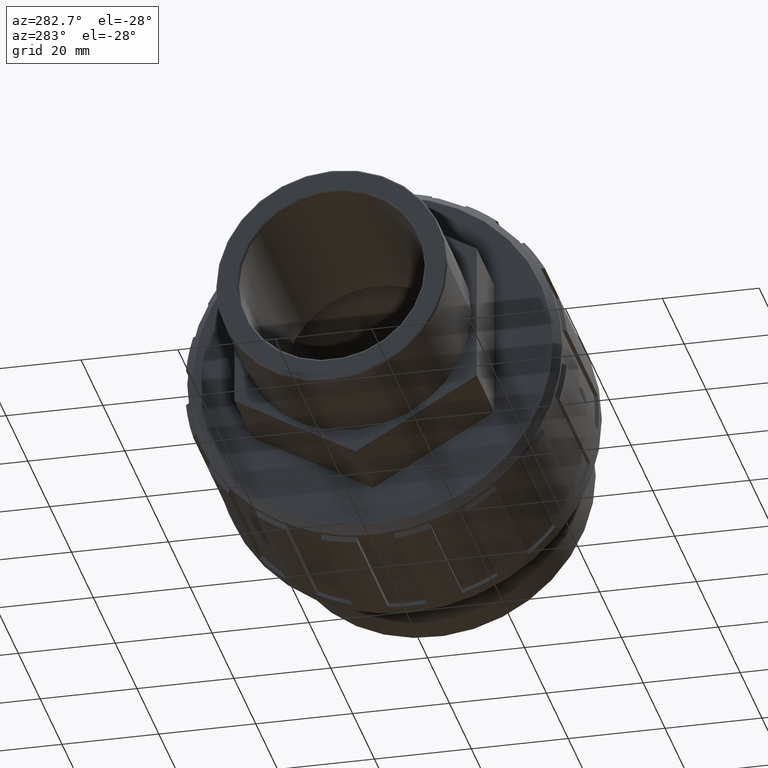
[diagram: clean part render]
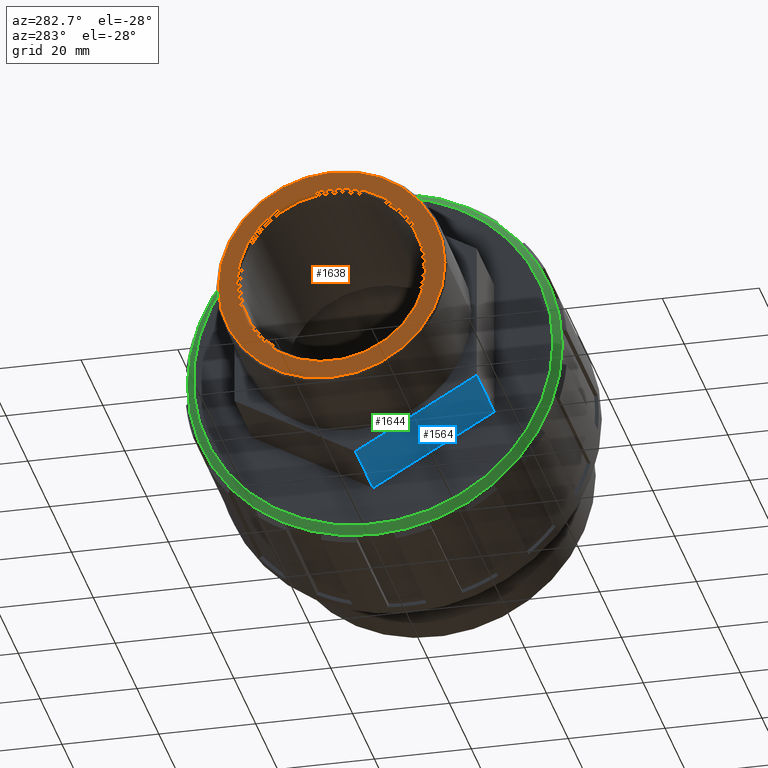
[diagram: same view with three faces highlighted in distinct colors, each labeled with its STEP entity id]
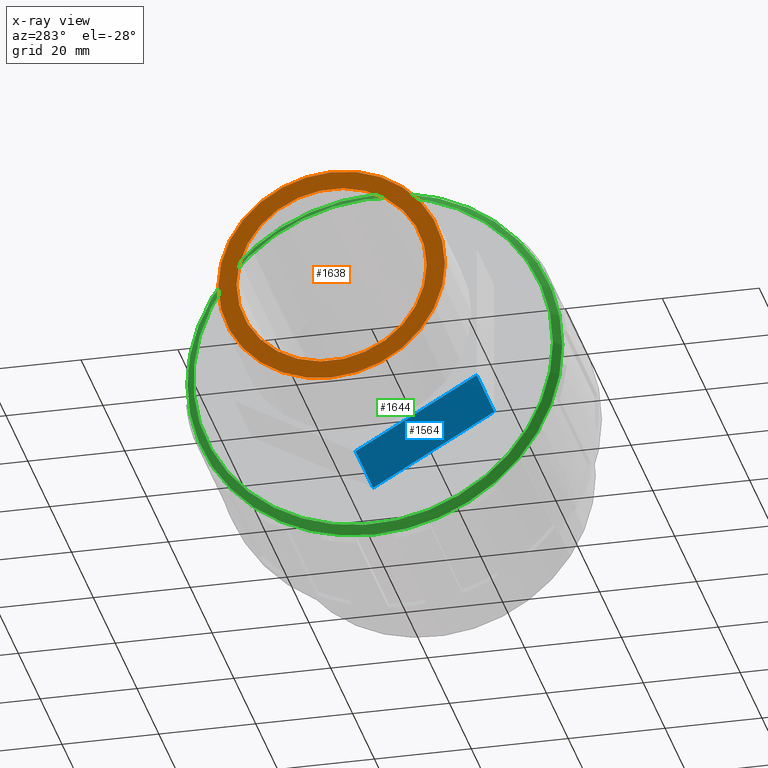
[diagram: x-ray of the same camera — body ghosted, the three highlighted faces saturated]
A machine part, auxiliary view with three faces highlighted in distinct colors.
The next image is the same camera in x-ray (body ghosted, the three faces saturated) — at least one of them is partly hidden behind the body in this view.
Their STEP definitions:

[orange] entity #1638 — the highlighted planar face has unit normal (-1, -0, 0).
#46=FACE_BOUND('',#330,.T.);
#138=CIRCLE('',#1803,19.6212);
#140=CIRCLE('',#1806,23.4015);
#228=FACE_OUTER_BOUND('',#329,.T.);
#329=EDGE_LOOP('',(#1392));
#330=EDGE_LOOP('',(#1393));
#796=VERTEX_POINT('',#2771);
#798=VERTEX_POINT('',#2776);
#1024=EDGE_CURVE('',#796,#796,#138,.T.);
#1026=EDGE_CURVE('',#798,#798,#140,.T.);
#1392=ORIENTED_EDGE('',*,*,#1026,.F.);
#1393=ORIENTED_EDGE('',*,*,#1024,.F.);
#1553=PLANE('',#1805);
#1638=ADVANCED_FACE('',(#228,#46),#1553,.T.);
#1803=AXIS2_PLACEMENT_3D('',#2772,#2273,#2274);
#1805=AXIS2_PLACEMENT_3D('',#2775,#2277,#2278);
#1806=AXIS2_PLACEMENT_3D('',#2777,#2279,#2280);
#2273=DIRECTION('center_axis',(-1.,-4.89858719658941E-16,0.));
#2274=DIRECTION('ref_axis',(-4.89858719658941E-16,1.,6.12323399573676E-17));
#2277=DIRECTION('center_axis',(-1.,-4.89858719658941E-16,0.));
#2278=DIRECTION('ref_axis',(0.,0.,1.));
#2279=DIRECTION('center_axis',(1.,4.89858719658941E-16,0.));
#2280=DIRECTION('ref_axis',(-4.89858719658941E-16,1.,6.12323399573677E-17));
#2771=CARTESIAN_POINT('',(-48.,-19.6212,1.2014519887715E-15));
#2772=CARTESIAN_POINT('Origin',(-48.,-1.46957615897682E-14,0.));
#2775=CARTESIAN_POINT('Origin',(-48.,-19.1212,0.));
#2776=CARTESIAN_POINT('',(-48.,-23.4015,-4.29878581053702E-15));
#2777=CARTESIAN_POINT('Origin',(-48.,-1.46957615897682E-14,0.));

[blue] entity #1564 — the highlighted planar face has unit normal (0, -0.5, -0.866).
#154=FACE_OUTER_BOUND('',#246,.T.);
#246=EDGE_LOOP('',(#1051,#1052,#1053,#1054));
#365=LINE('',#2352,#511);
#368=LINE('',#2358,#514);
#369=LINE('',#2360,#515);
#370=LINE('',#2361,#516);
#511=VECTOR('',#1847,16.);
#514=VECTOR('',#1852,28.8675134594813);
#515=VECTOR('',#1853,16.);
#516=VECTOR('',#1854,28.8675134594813);
#655=VERTEX_POINT('',#2348);
#657=VERTEX_POINT('',#2351);
#659=VERTEX_POINT('',#2357);
#660=VERTEX_POINT('',#2359);
#817=EDGE_CURVE('',#657,#655,#365,.T.);
#820=EDGE_CURVE('',#659,#655,#368,.T.);
#821=EDGE_CURVE('',#660,#659,#369,.T.);
#822=EDGE_CURVE('',#660,#657,#370,.T.);
#1051=ORIENTED_EDGE('',*,*,#820,.F.);
#1052=ORIENTED_EDGE('',*,*,#821,.F.);
#1053=ORIENTED_EDGE('',*,*,#822,.T.);
#1054=ORIENTED_EDGE('',*,*,#817,.T.);
#1502=PLANE('',#1658);
#1564=ADVANCED_FACE('',(#154),#1502,.T.);
#1658=AXIS2_PLACEMENT_3D('',#2356,#1850,#1851);
#1847=DIRECTION('',(1.,5.55111512312572E-16,0.));
#1850=DIRECTION('center_axis',(2.77555756156287E-16,-0.500000000000002,
-0.866025403784438));
#1851=DIRECTION('ref_axis',(-3.5527136788005E-16,0.866025403784438,-0.500000000000002));
#1852=DIRECTION('',(-4.24230095489962E-16,0.866025403784438,-0.500000000000002));
#1853=DIRECTION('',(1.,5.55111512312572E-16,0.));
#1854=DIRECTION('',(-4.24230095489962E-16,0.866025403784438,-0.500000000000002));
#2348=CARTESIAN_POINT('',(-10.,-4.77726792299652E-14,-28.8675134594813));
#2351=CARTESIAN_POINT('',(-26.,-5.66544634269663E-14,-28.8675134594813));
#2352=CARTESIAN_POINT('',(-26.,-5.66544634269663E-14,-28.8675134594813));
#2356=CARTESIAN_POINT('Origin',(-26.,-25.,-14.4337567297406));
#2357=CARTESIAN_POINT('',(-10.,-25.,-14.4337567297406));
#2358=CARTESIAN_POINT('',(-10.,-28.125,-12.629537138523));
#2359=CARTESIAN_POINT('',(-26.,-25.,-14.4337567297406));
#2360=CARTESIAN_POINT('',(-26.,-25.,-14.4337567297406));
#2361=CARTESIAN_POINT('',(-26.,-25.,-14.4337567297406));

[green] entity #1644 — the highlighted conical surface has half-angle 45 deg.
#36=CONICAL_SURFACE('',#1816,37.92,45.);
#50=FACE_BOUND('',#340,.T.);
#145=CIRCLE('',#1817,38.71);
#146=CIRCLE('',#1818,37.13);
#234=FACE_OUTER_BOUND('',#339,.T.);
#339=EDGE_LOOP('',(#1408));
#340=EDGE_LOOP('',(#1409));
#803=VERTEX_POINT('',#2794);
#804=VERTEX_POINT('',#2796);
#1033=EDGE_CURVE('',#803,#803,#145,.T.);
#1034=EDGE_CURVE('',#804,#804,#146,.T.);
#1408=ORIENTED_EDGE('',*,*,#1033,.T.);
#1409=ORIENTED_EDGE('',*,*,#1034,.T.);
#1644=ADVANCED_FACE('',(#234,#50),#36,.T.);
#1816=AXIS2_PLACEMENT_3D('',#2793,#2301,#2302);
#1817=AXIS2_PLACEMENT_3D('',#2795,#2303,#2304);
#1818=AXIS2_PLACEMENT_3D('',#2797,#2305,#2306);
#2301=DIRECTION('center_axis',(1.,4.89858719658941E-16,0.));
#2302=DIRECTION('ref_axis',(-5.00623672984952E-16,1.,0.));
#2303=DIRECTION('center_axis',(-1.,-4.89858719658941E-16,0.));
#2304=DIRECTION('ref_axis',(-5.10949240460922E-16,1.,0.));
#2305=DIRECTION('center_axis',(1.,4.89858719658941E-16,0.));
#2306=DIRECTION('ref_axis',(-4.89858719658941E-16,1.,0.));
#2793=CARTESIAN_POINT('Origin',(-9.21000000000001,4.30585814580209E-15,
0.));
#2794=CARTESIAN_POINT('',(-8.41999999999999,-38.71,4.7406077594994E-15));
#2795=CARTESIAN_POINT('Origin',(-8.42000000000001,4.69284653433265E-15,
0.));
#2796=CARTESIAN_POINT('',(-9.99999999999999,-37.13,-4.54711356523412E-15));
#2797=CARTESIAN_POINT('Origin',(-10.,3.91886975727153E-15,0.));